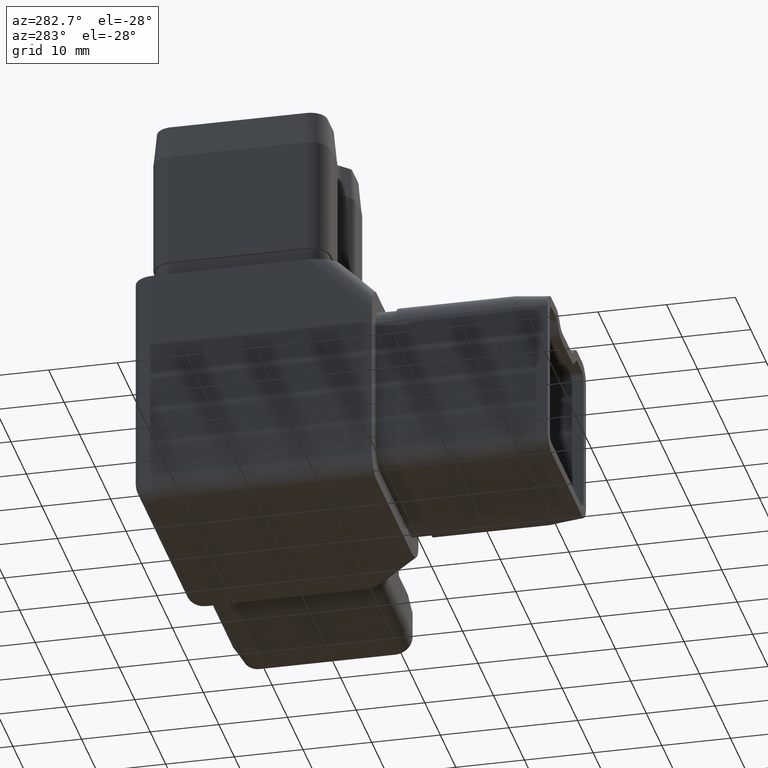
[diagram: clean part render]
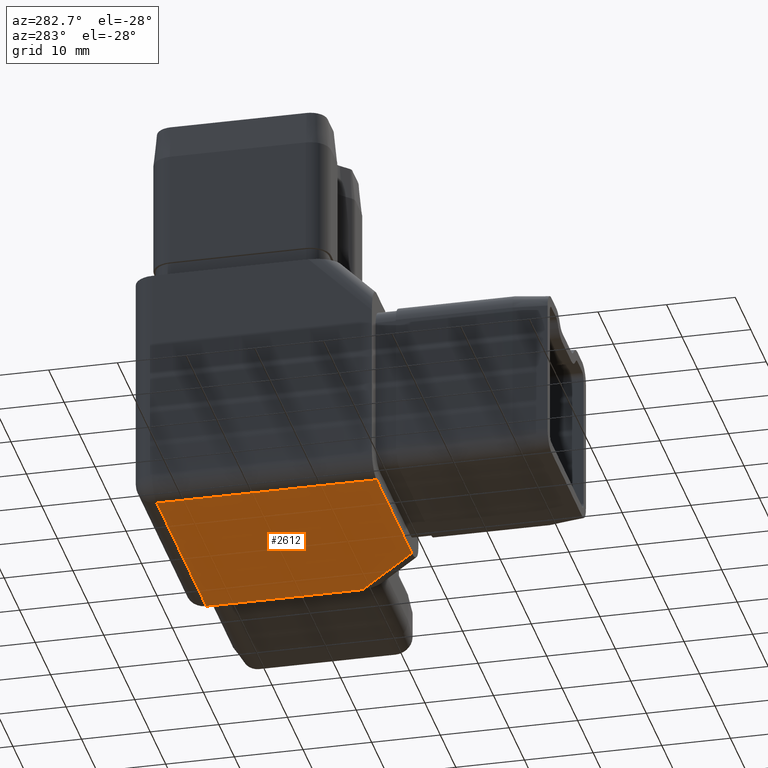
[diagram: same view with one face highlighted and labeled with its STEP entity id]
A machine part, auxiliary view. The second image highlights one B-rep face of the part: STEP entity #2612.
In plain terms, the highlighted planar face has unit normal (-0, 0, 1).
Its self-contained STEP definition (entity closure, byte-faithful):
#14 = ORIENTED_EDGE ( 'NONE', *, *, #14669, .F. ) ;
#303 = VECTOR ( 'NONE', #5311, 1000.000000000000000 ) ;
#370 = CARTESIAN_POINT ( 'NONE',  ( -14.50000000000000400, -1.437342308666497700E-015, -17.50000000000000000 ) ) ;
#589 = EDGE_CURVE ( 'NONE', #2841, #2522, #16185, .T. ) ;
#1049 = VECTOR ( 'NONE', #4923, 1000.000000000000000 ) ;
#1183 = DIRECTION ( 'NONE',  ( -0.7071067811865489100, -0.7071067811865460200, -0.0000000000000000000 ) ) ;
#1216 = VECTOR ( 'NONE', #1183, 1000.000000000000100 ) ;
#1316 = CARTESIAN_POINT ( 'NONE',  ( 0.0000000000000000000, 0.0000000000000000000, -17.50000000000000000 ) ) ;
#1719 = DIRECTION ( 'NONE',  ( -9.912705577010325500E-017, 1.000000000000000000, -0.0000000000000000000 ) ) ;
#2299 = VERTEX_POINT ( 'NONE', #13846 ) ;
#2522 = VERTEX_POINT ( 'NONE', #2739 ) ;
#2531 = CARTESIAN_POINT ( 'NONE',  ( 17.49999999999999600, 14.50000000000000500, -17.50000000000000000 ) ) ;
#2612 = ADVANCED_FACE ( 'NONE', ( #9302 ), #13006, .F. ) ;
#2739 = CARTESIAN_POINT ( 'NONE',  ( 8.257359312880678800, -17.49999999999999600, -17.50000000000000000 ) ) ;
#2841 = VERTEX_POINT ( 'NONE', #17475 ) ;
#3112 = CARTESIAN_POINT ( 'NONE',  ( 0.0000000000000000000, 14.50000000000000500, -17.50000000000000000 ) ) ;
#3656 = VERTEX_POINT ( 'NONE', #2531 ) ;
#3986 = LINE ( 'NONE', #10150, #303 ) ;
#4315 = DIRECTION ( 'NONE',  ( 1.000000000000000000, 0.0000000000000000000, 0.0000000000000000000 ) ) ;
#4546 = CARTESIAN_POINT ( 'NONE',  ( -14.50000000000000500, 14.50000000000000500, -17.50000000000000000 ) ) ;
#4923 = DIRECTION ( 'NONE',  ( 1.000000000000000000, 9.912705577010325500E-017, 0.0000000000000000000 ) ) ;
#4938 = LINE ( 'NONE', #7715, #1049 ) ;
#5311 = DIRECTION ( 'NONE',  ( -9.912705577010325500E-017, 1.000000000000000000, -0.0000000000000000000 ) ) ;
#6119 = AXIS2_PLACEMENT_3D ( 'NONE', #1316, #17174, #4315 ) ;
#6153 = DIRECTION ( 'NONE',  ( 1.000000000000000000, -0.0000000000000000000, 0.0000000000000000000 ) ) ;
#6427 = VECTOR ( 'NONE', #6153, 1000.000000000000000 ) ;
#7455 = EDGE_CURVE ( 'NONE', #2841, #3656, #3986, .T. ) ;
#7715 = CARTESIAN_POINT ( 'NONE',  ( -17.50000000000000000, -17.50000000000000000, -17.50000000000000000 ) ) ;
#8124 = ORIENTED_EDGE ( 'NONE', *, *, #589, .T. ) ;
#8735 = VERTEX_POINT ( 'NONE', #4546 ) ;
#9302 = FACE_OUTER_BOUND ( 'NONE', #18726, .T. ) ;
#10150 = CARTESIAN_POINT ( 'NONE',  ( 17.49999999999999600, 17.50000000000000400, -17.50000000000000000 ) ) ;
#10909 = EDGE_CURVE ( 'NONE', #8735, #3656, #14595, .T. ) ;
#11051 = ORIENTED_EDGE ( 'NONE', *, *, #7455, .F. ) ;
#12446 = VECTOR ( 'NONE', #1719, 1000.000000000000000 ) ;
#12982 = ORIENTED_EDGE ( 'NONE', *, *, #14015, .T. ) ;
#13006 = PLANE ( 'NONE',  #6119 ) ;
#13846 = CARTESIAN_POINT ( 'NONE',  ( -14.50000000000000200, -17.50000000000000000, -17.50000000000000000 ) ) ;
#14015 = EDGE_CURVE ( 'NONE', #2299, #8735, #15369, .T. ) ;
#14595 = LINE ( 'NONE', #3112, #6427 ) ;
#14669 = EDGE_CURVE ( 'NONE', #2299, #2522, #4938, .T. ) ;
#15369 = LINE ( 'NONE', #370, #12446 ) ;
#16185 = LINE ( 'NONE', #17173, #1216 ) ;
#17173 = CARTESIAN_POINT ( 'NONE',  ( 10.37867965644033900, -15.37867965644034900, -17.50000000000000000 ) ) ;
#17174 = DIRECTION ( 'NONE',  ( -0.0000000000000000000, 0.0000000000000000000, 1.000000000000000000 ) ) ;
#17475 = CARTESIAN_POINT ( 'NONE',  ( 17.50000000000000000, -8.257359312880716100, -17.50000000000000000 ) ) ;
#18273 = ORIENTED_EDGE ( 'NONE', *, *, #10909, .T. ) ;
#18726 = EDGE_LOOP ( 'NONE', ( #11051, #8124, #14, #12982, #18273 ) ) ;